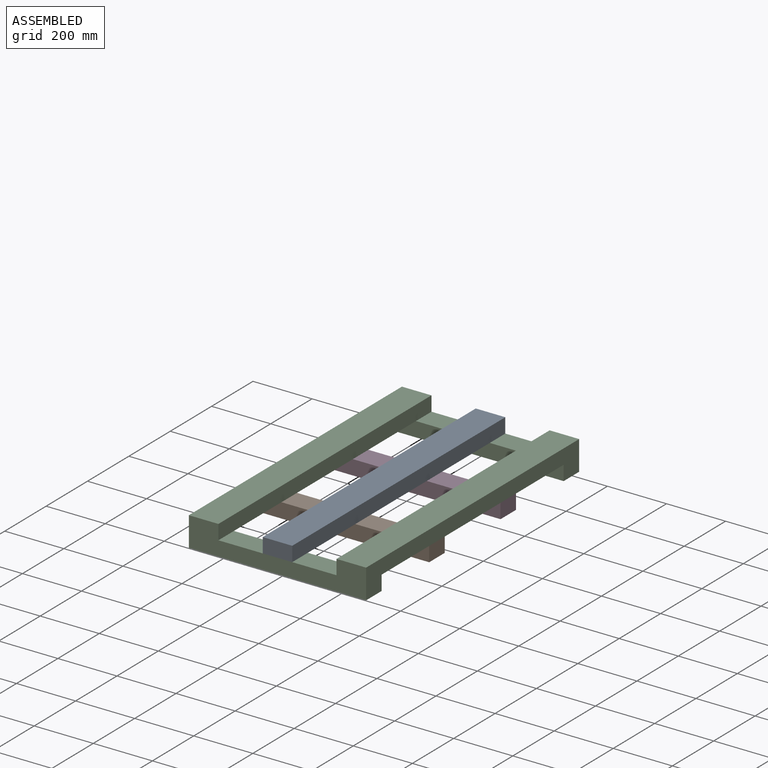
[diagram: assembled view]
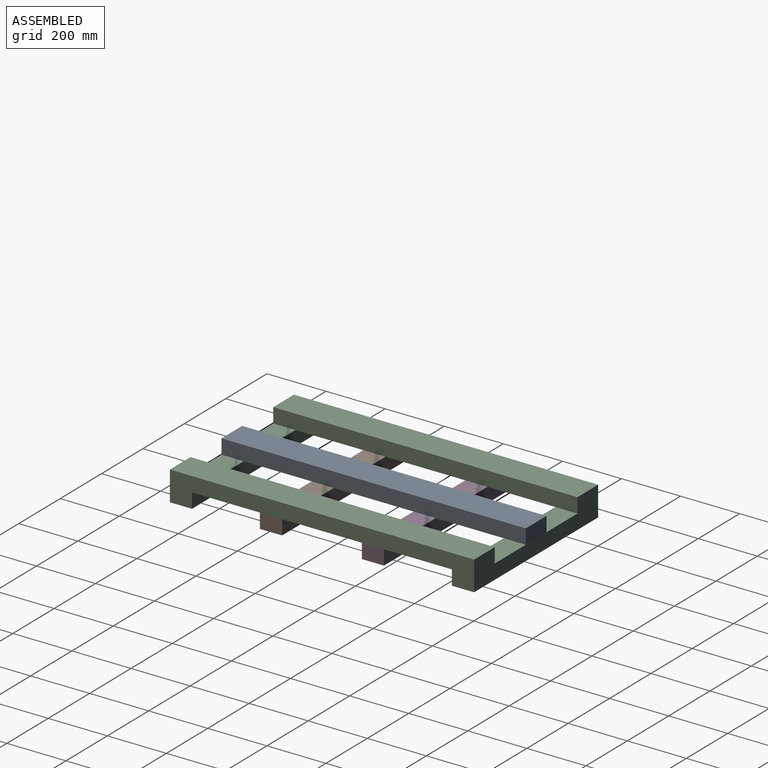
[diagram: assembled view, second angle]
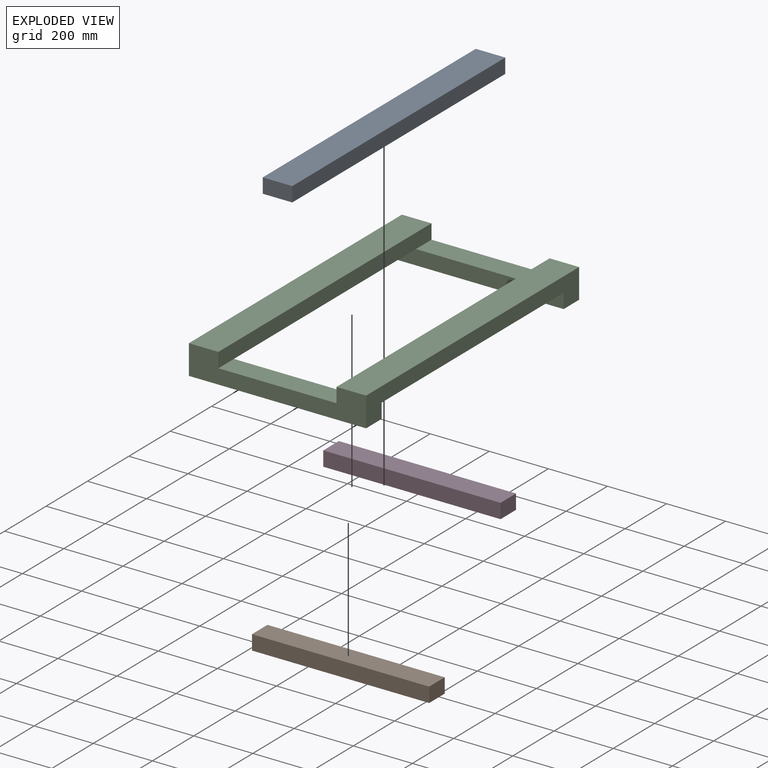
[diagram: exploded view]
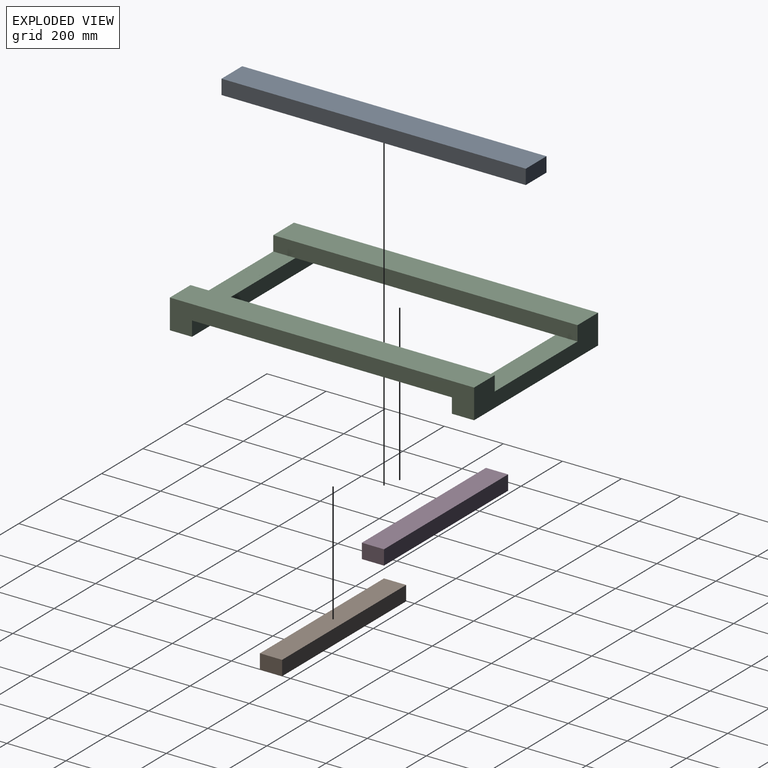
[diagram: exploded view, second angle]
ASSEMBLY  parts=4 mates=3
PART A: 6 faces, bbox 100x1030x50 mm
  f0: plane 100x50mm, normal (0,-1,0), area 5000mm2, adj f1,f3,f4,f5
  f1: plane 1030x50mm, normal (1,0,0), area 51500mm2, adj f0,f2,f4,f5
  f2: plane 100x50mm, normal (0,1,0), area 5000mm2, adj f1,f3,f4,f5
  f3: plane 1030x50mm, normal (-1,0,0), area 51500mm2, adj f0,f2,f4,f5
  f4: plane 1030x100mm, normal (0,0,1), area 103000mm2, adj f0,f1,f2,f3
  f5: plane 1030x100mm, normal (0,0,-1), area 103000mm2, adj f0,f1,f2,f3
PART B: 6 faces, bbox 75x600x50 mm
  f0: plane 600x50mm, normal (1,0,0), area 30000mm2, adj f1,f3,f4,f5
  f1: plane 75x50mm, normal (0,1,0), area 3750mm2, adj f0,f2,f4,f5
  f2: plane 600x50mm, normal (-1,0,0), area 30000mm2, adj f1,f3,f4,f5
  f3: plane 75x50mm, normal (0,-1,0), area 3750mm2, adj f0,f2,f4,f5
  f4: plane 600x75mm, normal (0,0,-1), area 45000mm2, adj f0,f1,f2,f3
  f5: plane 600x75mm, normal (0,0,1), area 45000mm2, adj f0,f1,f2,f3
PART C: 32 faces, bbox 600x1030x100 mm
  f0: plane 112.5x100mm, normal (0,0,-1), area 11250mm2, adj f3,f4,f24,f30
  f1: plane 270x100mm, normal (0,0,-1), area 27000mm2, adj f3,f4,f23,f27
  f2: plane 100x42.5mm, normal (0,0,-1), area 4250mm2, adj f3,f4,f18,f29
  f3: plane 1030x100mm, normal (-1,0,0), area 58997.8mm2, adj f0,f1,f2,f6,f8,f10,f11,f12
  f4: plane 1030x50mm, normal (1,0,0), area 51497.8mm2, adj f0,f1,f2,f5,f8,f11,f12,f13
  f5: plane 150x75mm, normal (0,0,1), area 11250mm2, adj f4,f6,f8,f21
  f6: plane 600x50mm, normal (0,1,0), area 29999mm2, adj f3,f5,f7,f9,f10,f13,f16,f20
  f7: plane 150x75mm, normal (0,0,1), area 11250mm2, adj f6,f8,f14,f20
  f8: plane 600x100mm, normal (0,-1,0), area 39999mm2, adj f3,f4,f5,f7,f9,f10,f12,f14
  f9: plane 1030x100mm, normal (1,0,0), area 59000mm2, adj f6,f8,f10,f11,f15,f16,f18,f19
  f10: plane 600x75mm, normal (0,0,-1), area 45000mm2, adj f3,f6,f8,f9
  f11: plane 600x100mm, normal (0,1,0), area 40000mm2, adj f3,f4,f9,f12,f14,f15,f17,f19
  f12: plane 1030x100mm, normal (0,0,1), area 103000mm2, adj f3,f4,f8,f11
  f13: plane 230x100mm, normal (0,0,-1), area 23000mm2, adj f3,f4,f6,f26
  f14: plane 1030x50mm, normal (-1,0,0), area 51500mm2, adj f7,f8,f11,f15,f16,f17
  f15: plane 1030x100mm, normal (0,0,1), area 103000mm2, adj f8,f9,f11,f14
  f16: plane 880x100mm, normal (0,0,-1), area 88000mm2, adj f6,f9,f14,f18
  f17: plane 400x75mm, normal (0,0,1), area 30000mm2, adj f4,f11,f14,f18
  f18: plane 600x50mm, normal (0,-1,0), area 30000mm2, adj f2,f3,f9,f16,f17,f19
  f19: plane 600x75mm, normal (0,0,-1), area 45000mm2, adj f3,f9,f11,f18
  f20: plane 75x0.01mm, normal (-1,0,0), area 0.8mm2, adj f6,f7,f8,f22
  f21: plane 75x0.01mm, normal (1,0,0), area 0.8mm2, adj f5,f6,f8,f22
  f22: plane 100x75mm, normal (0,0,1), area 7500mm2, adj f6,f8,f20,f21
  f23: plane 100x0.01mm, normal (0,1,0), area 1mm2, adj f1,f3,f4,f25
  f24: plane 100x0.01mm, normal (0,-1,0), area 1mm2, adj f0,f3,f4,f25
  f25: plane 100x75mm, normal (0,0,-1), area 7500mm2, adj f3,f4,f23,f24
  f26: plane 100x0.01mm, normal (0,1,0), area 1mm2, adj f3,f4,f13,f28
  f27: plane 100x0.01mm, normal (0,-1,0), area 1mm2, adj f1,f3,f4,f28
  f28: plane 100x75mm, normal (0,0,-1), area 7500mm2, adj f3,f4,f26,f27
  f29: plane 100x0.01mm, normal (0,-1,0), area 1mm2, adj f2,f3,f4,f31
  f30: plane 100x0.01mm, normal (0,1,0), area 1mm2, adj f0,f3,f4,f31
  f31: plane 100x75mm, normal (0,0,-1), area 7500mm2, adj f3,f4,f29,f30
PART D: same geometry as B
PLACE A t=(2060.75,-70.24,319.33)mm
PLACE B rot(axis=(0.71,0.71,0),180deg) t=(133.15,968.01,269.35)mm
PLACE C t=(133.15,-547.74,269.34)mm
PLACE D rot(axis=(0.71,0.71,0),180deg) t=(133.15,1313.01,269.35)mm
MATE fastened A.f5 <-> C.f22  axis (0,0,-1) through (83.15,-585.24,319.33)mm
MATE fastened B.f4 <-> C.f28  axis (0,0,1) through (-166.85,-205.24,319.35)mm
MATE fastened D.f4 <-> C.f25  axis (0,0,1) through (-166.85,139.76,319.35)mm
